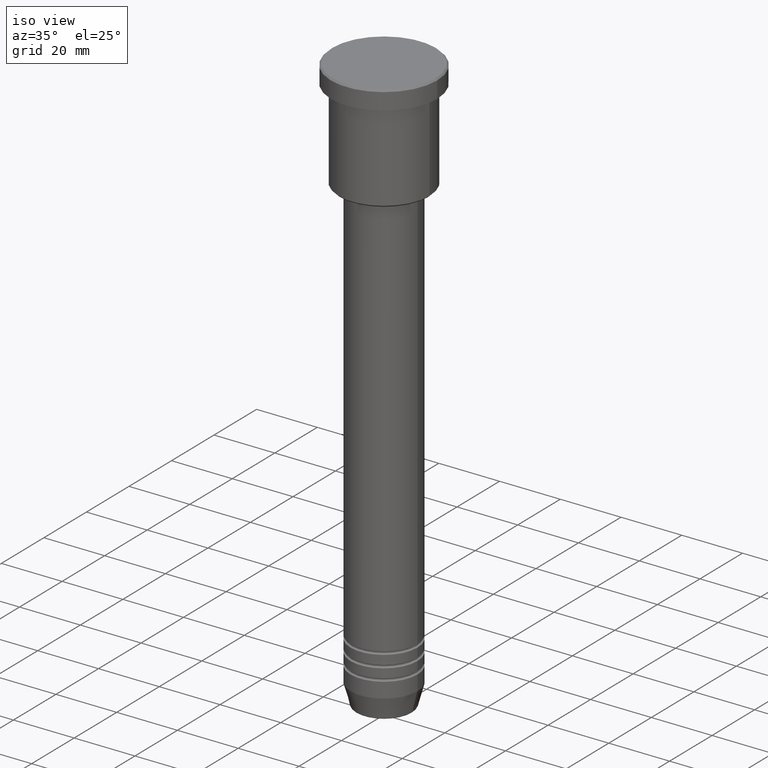
[diagram: clean part render]
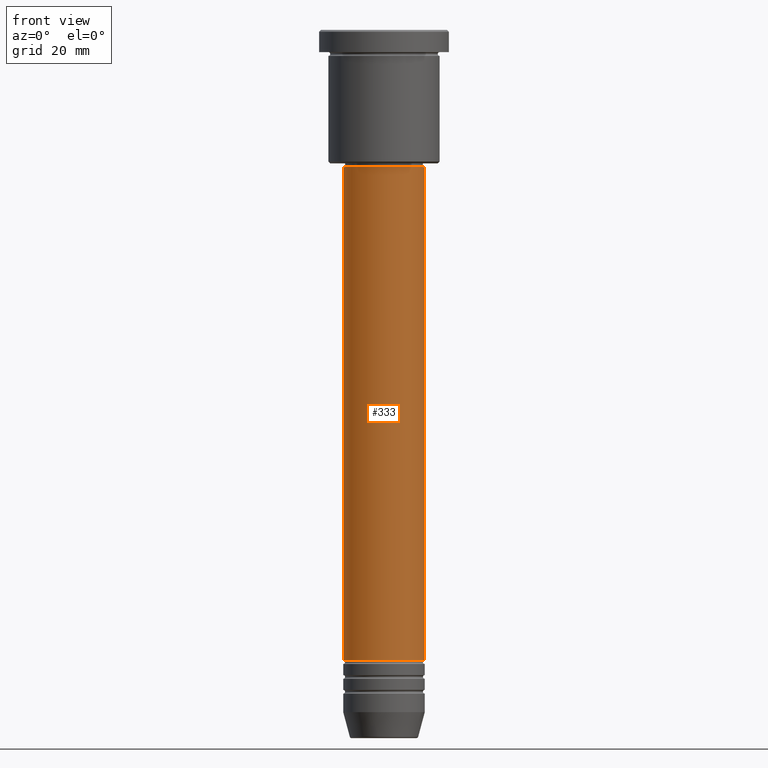
[diagram: tour spotlight — one face highlighted and labeled with its STEP entity id]
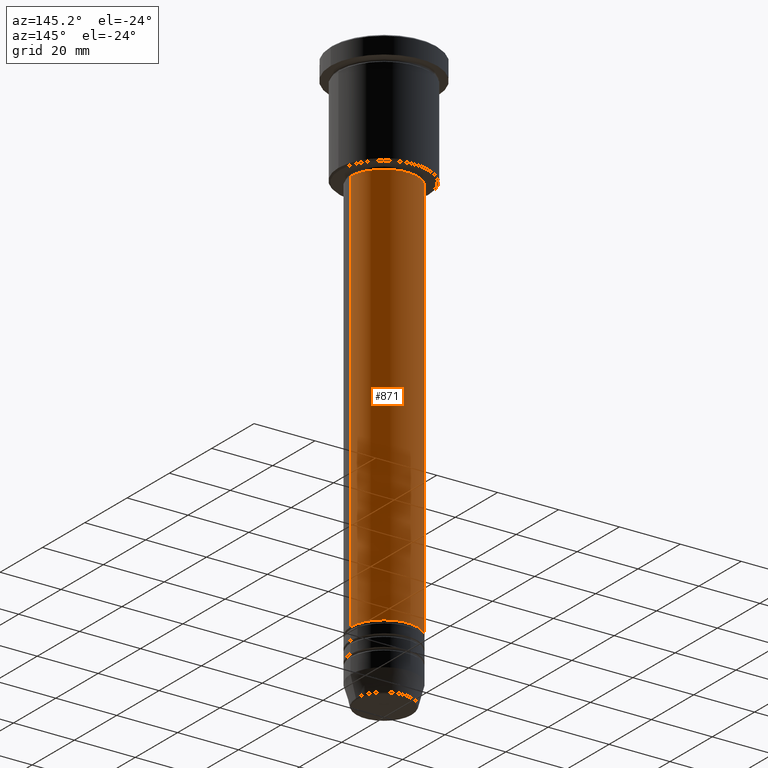
[diagram: tour spotlight — one face highlighted and labeled with its STEP entity id]
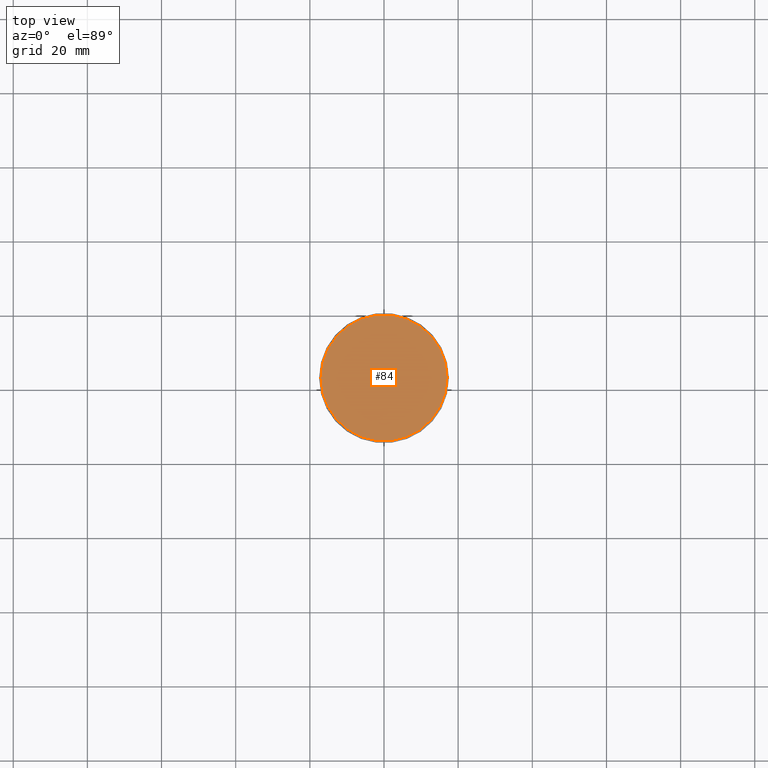
[diagram: tour spotlight — one face highlighted and labeled with its STEP entity id]
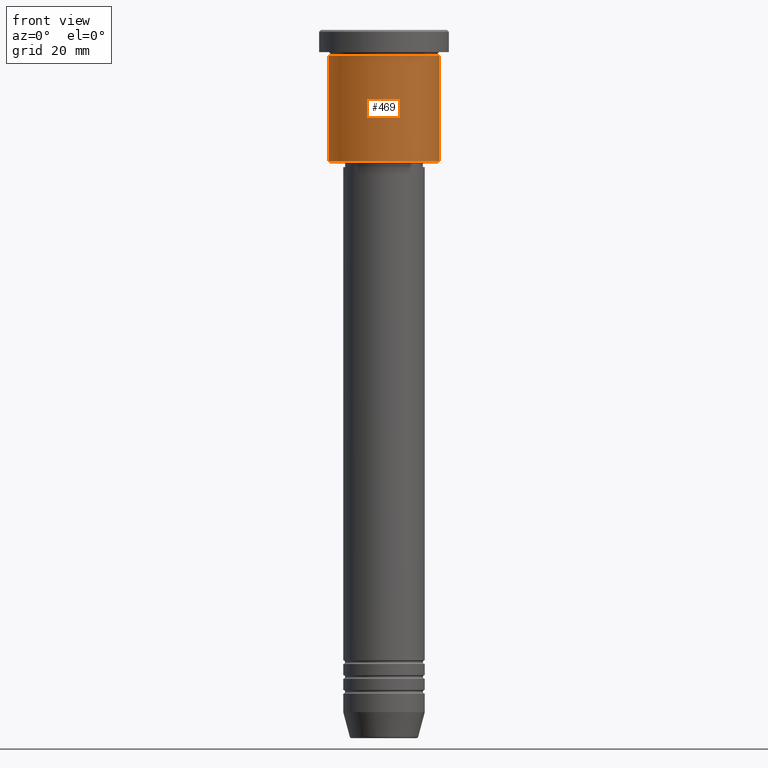
[diagram: tour spotlight — one face highlighted and labeled with its STEP entity id]
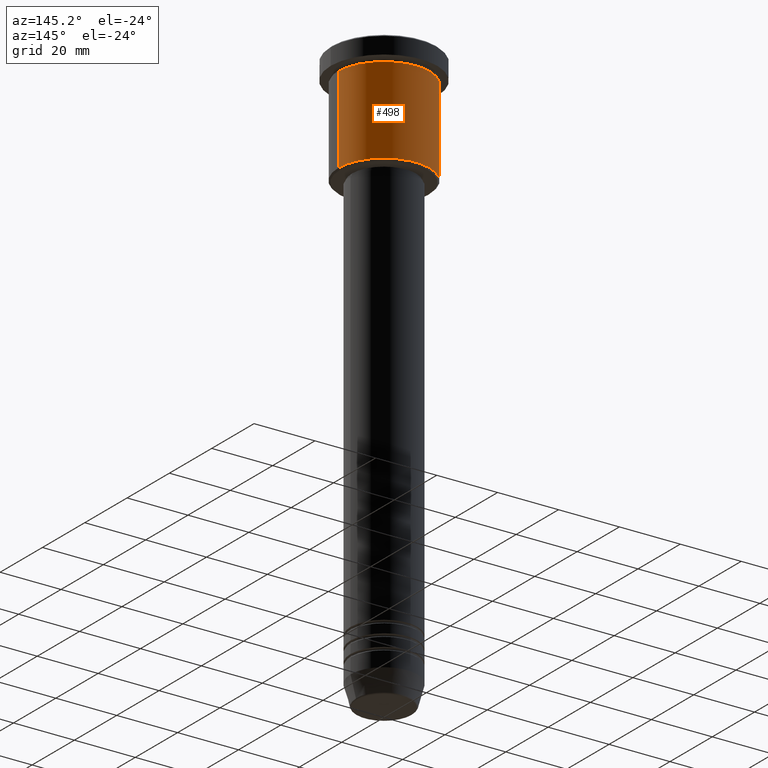
[diagram: tour spotlight — one face highlighted and labeled with its STEP entity id]
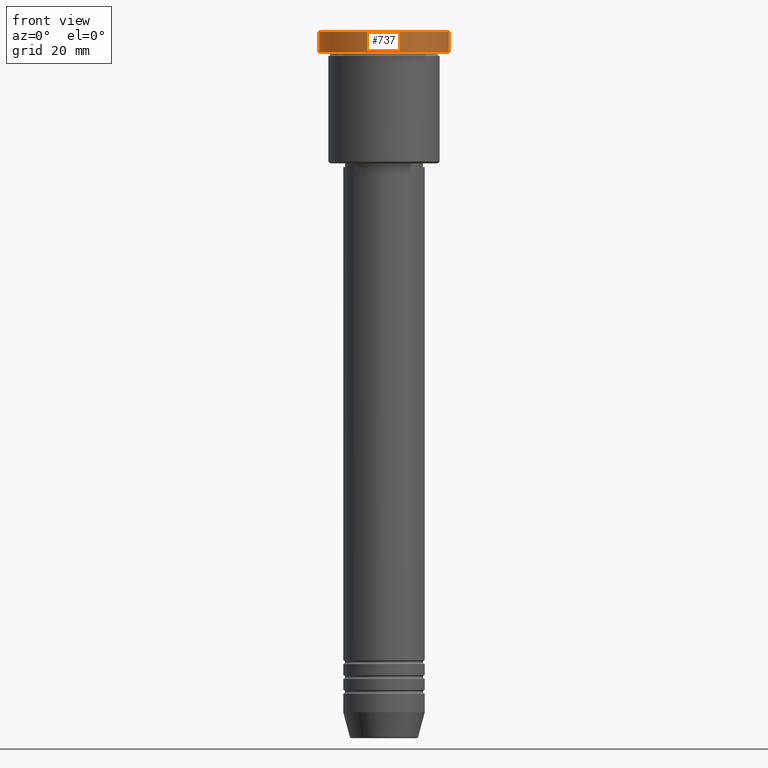
[diagram: tour spotlight — one face highlighted and labeled with its STEP entity id]
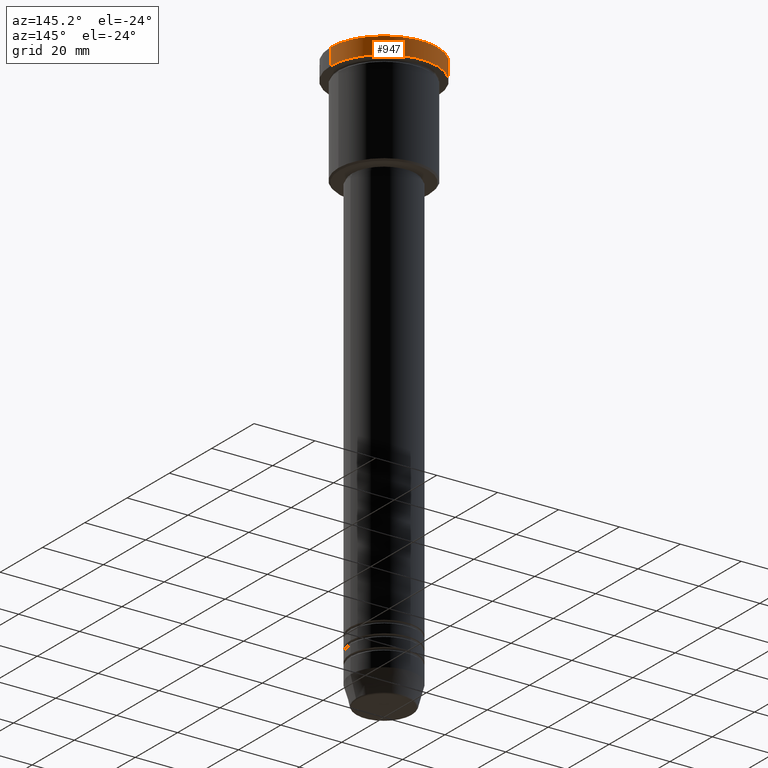
[diagram: tour spotlight — one face highlighted and labeled with its STEP entity id]
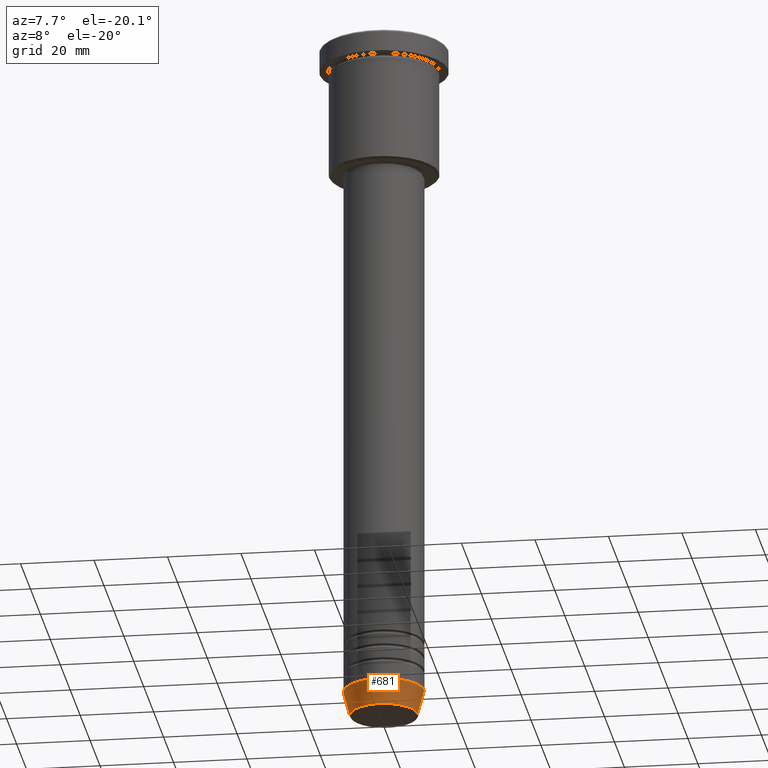
[diagram: tour spotlight — one face highlighted and labeled with its STEP entity id]
A machine part: a face-by-face anatomy tour. The part has 43 B-rep faces; the first image is the clean iso view, then the 8 largest visible faces are spotlighted one at a time (largest first), each with its STEP entity span.

Face 1 — front view, entity #333. In plain terms, the highlighted cylindrical surface (partial cylindrical patch) has radius 11 mm, axis along (-0, -0, 1).
Definition (entity closure, byte-faithful):
#41 = AXIS2_PLACEMENT_3D ( 'NONE', #484, #1128, #1027 ) ;
#92 = EDGE_CURVE ( 'NONE', #787, #120, #477, .T. ) ;
#102 = CARTESIAN_POINT ( 'NONE',  ( 11.00000000000000000, 0.000000000000000000, 0.000000000000000000 ) ) ;
#115 = VECTOR ( 'NONE', #647, 1000.000000000000000 ) ;
#120 = VERTEX_POINT ( 'NONE', #536 ) ;
#192 = LINE ( 'NONE', #360, #115 ) ;
#220 = DIRECTION ( 'NONE',  ( 1.000000000000000000, 0.000000000000000000, 0.000000000000000000 ) ) ;
#225 = FACE_OUTER_BOUND ( 'NONE', #940, .T. ) ;
#303 = AXIS2_PLACEMENT_3D ( 'NONE', #784, #720, #744 ) ;
#333 = ADVANCED_FACE ( 'NONE', ( #225 ), #1129, .T. ) ;
#339 = ORIENTED_EDGE ( 'NONE', *, *, #548, .F. ) ;
#344 = VERTEX_POINT ( 'NONE', #778 ) ;
#360 = CARTESIAN_POINT ( 'NONE',  ( -11.00000000000000000, 1.347111479062088405E-15, 0.000000000000000000 ) ) ;
#377 = ORIENTED_EDGE ( 'NONE', *, *, #1089, .T. ) ;
#411 = VECTOR ( 'NONE', #811, 1000.000000000000000 ) ;
#414 = CARTESIAN_POINT ( 'NONE',  ( 11.00000000000000000, 0.000000000000000000, -169.9999999999999147 ) ) ;
#477 = CIRCLE ( 'NONE', #303, 11.00000000000000000 ) ;
#482 = ORIENTED_EDGE ( 'NONE', *, *, #813, .T. ) ;
#484 = CARTESIAN_POINT ( 'NONE',  ( 0.000000000000000000, 0.000000000000000000, -169.9999999999999147 ) ) ;
#527 = ORIENTED_EDGE ( 'NONE', *, *, #92, .F. ) ;
#536 = CARTESIAN_POINT ( 'NONE',  ( 11.00000000000000000, 0.000000000000000000, -37.00000000000002842 ) ) ;
#548 = EDGE_CURVE ( 'NONE', #344, #787, #192, .T. ) ;
#554 = LINE ( 'NONE', #102, #411 ) ;
#647 = DIRECTION ( 'NONE',  ( -0.000000000000000000, -0.000000000000000000, 1.000000000000000000 ) ) ;
#708 = VERTEX_POINT ( 'NONE', #414 ) ;
#720 = DIRECTION ( 'NONE',  ( -0.000000000000000000, -0.000000000000000000, 1.000000000000000000 ) ) ;
#744 = DIRECTION ( 'NONE',  ( 1.000000000000000000, 0.000000000000000000, 0.000000000000000000 ) ) ;
#759 = CARTESIAN_POINT ( 'NONE',  ( 0.000000000000000000, 0.000000000000000000, 0.000000000000000000 ) ) ;
#778 = CARTESIAN_POINT ( 'NONE',  ( -11.00000000000000000, 1.347111479062088405E-15, -169.9999999999999147 ) ) ;
#784 = CARTESIAN_POINT ( 'NONE',  ( 0.000000000000000000, 0.000000000000000000, -37.00000000000002842 ) ) ;
#787 = VERTEX_POINT ( 'NONE', #837 ) ;
#805 = AXIS2_PLACEMENT_3D ( 'NONE', #759, #1123, #220 ) ;
#811 = DIRECTION ( 'NONE',  ( -0.000000000000000000, -0.000000000000000000, 1.000000000000000000 ) ) ;
#813 = EDGE_CURVE ( 'NONE', #344, #708, #1075, .T. ) ;
#837 = CARTESIAN_POINT ( 'NONE',  ( -11.00000000000000000, 1.347111479062088405E-15, -37.00000000000002842 ) ) ;
#940 = EDGE_LOOP ( 'NONE', ( #339, #482, #377, #527 ) ) ;
#1027 = DIRECTION ( 'NONE',  ( 1.000000000000000000, 0.000000000000000000, 0.000000000000000000 ) ) ;
#1075 = CIRCLE ( 'NONE', #41, 11.00000000000000000 ) ;
#1089 = EDGE_CURVE ( 'NONE', #708, #120, #554, .T. ) ;
#1123 = DIRECTION ( 'NONE',  ( -0.000000000000000000, -0.000000000000000000, 1.000000000000000000 ) ) ;
#1128 = DIRECTION ( 'NONE',  ( -0.000000000000000000, -0.000000000000000000, 1.000000000000000000 ) ) ;
#1129 = CYLINDRICAL_SURFACE ( 'NONE', #805, 11.00000000000000000 ) ;

Face 2 — auxiliary view, entity #871. In plain terms, the highlighted cylindrical surface (partial cylindrical patch) has radius 11 mm, axis along (-0, -0, 1).
Definition (entity closure, byte-faithful):
#67 = ORIENTED_EDGE ( 'NONE', *, *, #687, .T. ) ;
#102 = CARTESIAN_POINT ( 'NONE',  ( 11.00000000000000000, 0.000000000000000000, 0.000000000000000000 ) ) ;
#115 = VECTOR ( 'NONE', #647, 1000.000000000000000 ) ;
#117 = AXIS2_PLACEMENT_3D ( 'NONE', #140, #621, #418 ) ;
#120 = VERTEX_POINT ( 'NONE', #536 ) ;
#140 = CARTESIAN_POINT ( 'NONE',  ( 0.000000000000000000, 0.000000000000000000, 0.000000000000000000 ) ) ;
#177 = DIRECTION ( 'NONE',  ( -0.000000000000000000, -0.000000000000000000, 1.000000000000000000 ) ) ;
#192 = LINE ( 'NONE', #360, #115 ) ;
#209 = ORIENTED_EDGE ( 'NONE', *, *, #1089, .F. ) ;
#249 = FACE_OUTER_BOUND ( 'NONE', #1016, .T. ) ;
#265 = CARTESIAN_POINT ( 'NONE',  ( 0.000000000000000000, 0.000000000000000000, -37.00000000000002842 ) ) ;
#344 = VERTEX_POINT ( 'NONE', #778 ) ;
#360 = CARTESIAN_POINT ( 'NONE',  ( -11.00000000000000000, 1.347111479062088405E-15, 0.000000000000000000 ) ) ;
#411 = VECTOR ( 'NONE', #811, 1000.000000000000000 ) ;
#414 = CARTESIAN_POINT ( 'NONE',  ( 11.00000000000000000, 0.000000000000000000, -169.9999999999999147 ) ) ;
#418 = DIRECTION ( 'NONE',  ( 1.000000000000000000, 0.000000000000000000, 0.000000000000000000 ) ) ;
#483 = CIRCLE ( 'NONE', #883, 11.00000000000000000 ) ;
#536 = CARTESIAN_POINT ( 'NONE',  ( 11.00000000000000000, 0.000000000000000000, -37.00000000000002842 ) ) ;
#548 = EDGE_CURVE ( 'NONE', #344, #787, #192, .T. ) ;
#554 = LINE ( 'NONE', #102, #411 ) ;
#557 = EDGE_CURVE ( 'NONE', #120, #787, #483, .T. ) ;
#621 = DIRECTION ( 'NONE',  ( -0.000000000000000000, -0.000000000000000000, 1.000000000000000000 ) ) ;
#633 = CIRCLE ( 'NONE', #936, 11.00000000000000000 ) ;
#639 = ORIENTED_EDGE ( 'NONE', *, *, #557, .F. ) ;
#647 = DIRECTION ( 'NONE',  ( -0.000000000000000000, -0.000000000000000000, 1.000000000000000000 ) ) ;
#687 = EDGE_CURVE ( 'NONE', #708, #344, #633, .T. ) ;
#708 = VERTEX_POINT ( 'NONE', #414 ) ;
#738 = DIRECTION ( 'NONE',  ( -0.000000000000000000, -0.000000000000000000, 1.000000000000000000 ) ) ;
#778 = CARTESIAN_POINT ( 'NONE',  ( -11.00000000000000000, 1.347111479062088405E-15, -169.9999999999999147 ) ) ;
#787 = VERTEX_POINT ( 'NONE', #837 ) ;
#802 = ORIENTED_EDGE ( 'NONE', *, *, #548, .T. ) ;
#811 = DIRECTION ( 'NONE',  ( -0.000000000000000000, -0.000000000000000000, 1.000000000000000000 ) ) ;
#828 = CARTESIAN_POINT ( 'NONE',  ( 0.000000000000000000, 0.000000000000000000, -169.9999999999999147 ) ) ;
#833 = DIRECTION ( 'NONE',  ( 1.000000000000000000, 0.000000000000000000, 0.000000000000000000 ) ) ;
#837 = CARTESIAN_POINT ( 'NONE',  ( -11.00000000000000000, 1.347111479062088405E-15, -37.00000000000002842 ) ) ;
#870 = CYLINDRICAL_SURFACE ( 'NONE', #117, 11.00000000000000000 ) ;
#871 = ADVANCED_FACE ( 'NONE', ( #249 ), #870, .T. ) ;
#883 = AXIS2_PLACEMENT_3D ( 'NONE', #265, #177, #833 ) ;
#936 = AXIS2_PLACEMENT_3D ( 'NONE', #828, #738, #1103 ) ;
#1016 = EDGE_LOOP ( 'NONE', ( #67, #802, #639, #209 ) ) ;
#1089 = EDGE_CURVE ( 'NONE', #708, #120, #554, .T. ) ;
#1103 = DIRECTION ( 'NONE',  ( 1.000000000000000000, 0.000000000000000000, 0.000000000000000000 ) ) ;

Face 3 — top view, entity #84. In plain terms, the highlighted planar face has unit normal (0, -0, 1).
Definition (entity closure, byte-faithful):
#54 = DIRECTION ( 'NONE',  ( 1.000000000000000000, 0.000000000000000000, 0.000000000000000000 ) ) ;
#84 = ADVANCED_FACE ( 'NONE', ( #236 ), #878, .T. ) ;
#98 = AXIS2_PLACEMENT_3D ( 'NONE', #1170, #691, #603 ) ;
#110 = EDGE_LOOP ( 'NONE', ( #835, #836 ) ) ;
#126 = DIRECTION ( 'NONE',  ( 1.000000000000000000, 0.000000000000000000, 0.000000000000000000 ) ) ;
#157 = CIRCLE ( 'NONE', #98, 17.00000000000001421 ) ;
#236 = FACE_OUTER_BOUND ( 'NONE', #110, .T. ) ;
#275 = VERTEX_POINT ( 'NONE', #675 ) ;
#354 = CARTESIAN_POINT ( 'NONE',  ( 17.00000000000001421, 2.112515728529185250E-15, 0.000000000000000000 ) ) ;
#398 = VERTEX_POINT ( 'NONE', #354 ) ;
#420 = DIRECTION ( 'NONE',  ( 0.000000000000000000, -0.000000000000000000, 1.000000000000000000 ) ) ;
#574 = DIRECTION ( 'NONE',  ( -0.000000000000000000, -0.000000000000000000, 1.000000000000000000 ) ) ;
#576 = AXIS2_PLACEMENT_3D ( 'NONE', #873, #420, #54 ) ;
#603 = DIRECTION ( 'NONE',  ( 1.000000000000000000, 0.000000000000000000, 0.000000000000000000 ) ) ;
#675 = CARTESIAN_POINT ( 'NONE',  ( -17.00000000000001421, 0.000000000000000000, 0.000000000000000000 ) ) ;
#691 = DIRECTION ( 'NONE',  ( -0.000000000000000000, -0.000000000000000000, 1.000000000000000000 ) ) ;
#698 = EDGE_CURVE ( 'NONE', #275, #398, #976, .T. ) ;
#835 = ORIENTED_EDGE ( 'NONE', *, *, #698, .T. ) ;
#836 = ORIENTED_EDGE ( 'NONE', *, *, #963, .T. ) ;
#873 = CARTESIAN_POINT ( 'NONE',  ( 0.000000000000000000, 0.000000000000000000, 0.000000000000000000 ) ) ;
#878 = PLANE ( 'NONE',  #576 ) ;
#963 = EDGE_CURVE ( 'NONE', #398, #275, #157, .T. ) ;
#976 = CIRCLE ( 'NONE', #1031, 17.00000000000001421 ) ;
#1031 = AXIS2_PLACEMENT_3D ( 'NONE', #1117, #574, #126 ) ;
#1117 = CARTESIAN_POINT ( 'NONE',  ( 0.000000000000000000, 0.000000000000000000, 0.000000000000000000 ) ) ;
#1170 = CARTESIAN_POINT ( 'NONE',  ( 0.000000000000000000, 0.000000000000000000, 0.000000000000000000 ) ) ;

Face 4 — front view, entity #469. In plain terms, the highlighted cylindrical surface (partial cylindrical patch) has radius 15 mm, axis along (-0, -0, 1).
Definition (entity closure, byte-faithful):
#17 = DIRECTION ( 'NONE',  ( -0.000000000000000000, -0.000000000000000000, 1.000000000000000000 ) ) ;
#103 = DIRECTION ( 'NONE',  ( 1.000000000000000000, 0.000000000000000000, 0.000000000000000000 ) ) ;
#127 = DIRECTION ( 'NONE',  ( -1.000000000000000000, 0.000000000000000000, 0.000000000000000000 ) ) ;
#155 = EDGE_LOOP ( 'NONE', ( #188, #703, #594, #432 ) ) ;
#171 = FACE_OUTER_BOUND ( 'NONE', #155, .T. ) ;
#188 = ORIENTED_EDGE ( 'NONE', *, *, #1026, .F. ) ;
#189 = CARTESIAN_POINT ( 'NONE',  ( -15.00000000000000000, 1.836970198721029589E-15, 0.000000000000000000 ) ) ;
#206 = DIRECTION ( 'NONE',  ( -0.000000000000000000, -0.000000000000000000, 1.000000000000000000 ) ) ;
#261 = CARTESIAN_POINT ( 'NONE',  ( 0.000000000000000000, 0.000000000000000000, 0.000000000000000000 ) ) ;
#272 = EDGE_CURVE ( 'NONE', #818, #968, #651, .T. ) ;
#347 = DIRECTION ( 'NONE',  ( -0.000000000000000000, -0.000000000000000000, 1.000000000000000000 ) ) ;
#357 = VERTEX_POINT ( 'NONE', #590 ) ;
#367 = AXIS2_PLACEMENT_3D ( 'NONE', #723, #17, #103 ) ;
#400 = VERTEX_POINT ( 'NONE', #1068 ) ;
#432 = ORIENTED_EDGE ( 'NONE', *, *, #628, .F. ) ;
#460 = VECTOR ( 'NONE', #1007, 1000.000000000000000 ) ;
#469 = ADVANCED_FACE ( 'NONE', ( #171 ), #1061, .T. ) ;
#489 = CARTESIAN_POINT ( 'NONE',  ( -15.00000000000000000, 1.836970198721029589E-15, -35.50000000000002132 ) ) ;
#510 = CARTESIAN_POINT ( 'NONE',  ( 0.000000000000000000, 0.000000000000000000, -35.50000000000002132 ) ) ;
#523 = VECTOR ( 'NONE', #722, 1000.000000000000000 ) ;
#524 = EDGE_CURVE ( 'NONE', #968, #400, #915, .T. ) ;
#579 = CIRCLE ( 'NONE', #367, 15.00000000000000000 ) ;
#590 = CARTESIAN_POINT ( 'NONE',  ( -15.00000000000000000, 1.836970198721029589E-15, -6.999999999999995559 ) ) ;
#594 = ORIENTED_EDGE ( 'NONE', *, *, #524, .T. ) ;
#604 = DIRECTION ( 'NONE',  ( 1.000000000000000000, 0.000000000000000000, 0.000000000000000000 ) ) ;
#628 = EDGE_CURVE ( 'NONE', #357, #400, #579, .T. ) ;
#651 = CIRCLE ( 'NONE', #935, 15.00000000000000000 ) ;
#703 = ORIENTED_EDGE ( 'NONE', *, *, #272, .T. ) ;
#722 = DIRECTION ( 'NONE',  ( -0.000000000000000000, -0.000000000000000000, 1.000000000000000000 ) ) ;
#723 = CARTESIAN_POINT ( 'NONE',  ( 0.000000000000000000, 0.000000000000000000, -6.999999999999995559 ) ) ;
#747 = AXIS2_PLACEMENT_3D ( 'NONE', #261, #347, #604 ) ;
#818 = VERTEX_POINT ( 'NONE', #489 ) ;
#901 = LINE ( 'NONE', #189, #523 ) ;
#915 = LINE ( 'NONE', #922, #460 ) ;
#922 = CARTESIAN_POINT ( 'NONE',  ( 15.00000000000000000, 0.000000000000000000, 0.000000000000000000 ) ) ;
#935 = AXIS2_PLACEMENT_3D ( 'NONE', #510, #206, #127 ) ;
#964 = CARTESIAN_POINT ( 'NONE',  ( 15.00000000000000000, 0.000000000000000000, -35.50000000000002132 ) ) ;
#968 = VERTEX_POINT ( 'NONE', #964 ) ;
#1007 = DIRECTION ( 'NONE',  ( -0.000000000000000000, -0.000000000000000000, 1.000000000000000000 ) ) ;
#1026 = EDGE_CURVE ( 'NONE', #818, #357, #901, .T. ) ;
#1061 = CYLINDRICAL_SURFACE ( 'NONE', #747, 15.00000000000000000 ) ;
#1068 = CARTESIAN_POINT ( 'NONE',  ( 15.00000000000000000, 0.000000000000000000, -6.999999999999995559 ) ) ;

Face 5 — auxiliary view, entity #498. In plain terms, the highlighted cylindrical surface (partial cylindrical patch) has radius 15 mm, axis along (-0, -0, 1).
Definition (entity closure, byte-faithful):
#1 = AXIS2_PLACEMENT_3D ( 'NONE', #162, #356, #1079 ) ;
#57 = CYLINDRICAL_SURFACE ( 'NONE', #329, 15.00000000000000000 ) ;
#138 = EDGE_CURVE ( 'NONE', #400, #357, #857, .T. ) ;
#162 = CARTESIAN_POINT ( 'NONE',  ( 0.000000000000000000, 0.000000000000000000, -6.999999999999995559 ) ) ;
#169 = ORIENTED_EDGE ( 'NONE', *, *, #524, .F. ) ;
#175 = CIRCLE ( 'NONE', #308, 15.00000000000000000 ) ;
#189 = CARTESIAN_POINT ( 'NONE',  ( -15.00000000000000000, 1.836970198721029589E-15, 0.000000000000000000 ) ) ;
#282 = CARTESIAN_POINT ( 'NONE',  ( 0.000000000000000000, 0.000000000000000000, -35.50000000000002132 ) ) ;
#308 = AXIS2_PLACEMENT_3D ( 'NONE', #282, #907, #812 ) ;
#329 = AXIS2_PLACEMENT_3D ( 'NONE', #425, #790, #1155 ) ;
#356 = DIRECTION ( 'NONE',  ( -0.000000000000000000, -0.000000000000000000, 1.000000000000000000 ) ) ;
#357 = VERTEX_POINT ( 'NONE', #590 ) ;
#400 = VERTEX_POINT ( 'NONE', #1068 ) ;
#425 = CARTESIAN_POINT ( 'NONE',  ( 0.000000000000000000, 0.000000000000000000, 0.000000000000000000 ) ) ;
#460 = VECTOR ( 'NONE', #1007, 1000.000000000000000 ) ;
#489 = CARTESIAN_POINT ( 'NONE',  ( -15.00000000000000000, 1.836970198721029589E-15, -35.50000000000002132 ) ) ;
#498 = ADVANCED_FACE ( 'NONE', ( #514 ), #57, .T. ) ;
#514 = FACE_OUTER_BOUND ( 'NONE', #1091, .T. ) ;
#523 = VECTOR ( 'NONE', #722, 1000.000000000000000 ) ;
#524 = EDGE_CURVE ( 'NONE', #968, #400, #915, .T. ) ;
#570 = ORIENTED_EDGE ( 'NONE', *, *, #1026, .T. ) ;
#590 = CARTESIAN_POINT ( 'NONE',  ( -15.00000000000000000, 1.836970198721029589E-15, -6.999999999999995559 ) ) ;
#623 = EDGE_CURVE ( 'NONE', #968, #818, #175, .T. ) ;
#722 = DIRECTION ( 'NONE',  ( -0.000000000000000000, -0.000000000000000000, 1.000000000000000000 ) ) ;
#780 = ORIENTED_EDGE ( 'NONE', *, *, #623, .T. ) ;
#790 = DIRECTION ( 'NONE',  ( -0.000000000000000000, -0.000000000000000000, 1.000000000000000000 ) ) ;
#812 = DIRECTION ( 'NONE',  ( -1.000000000000000000, 0.000000000000000000, 0.000000000000000000 ) ) ;
#818 = VERTEX_POINT ( 'NONE', #489 ) ;
#857 = CIRCLE ( 'NONE', #1, 15.00000000000000000 ) ;
#901 = LINE ( 'NONE', #189, #523 ) ;
#907 = DIRECTION ( 'NONE',  ( -0.000000000000000000, -0.000000000000000000, 1.000000000000000000 ) ) ;
#915 = LINE ( 'NONE', #922, #460 ) ;
#922 = CARTESIAN_POINT ( 'NONE',  ( 15.00000000000000000, 0.000000000000000000, 0.000000000000000000 ) ) ;
#964 = CARTESIAN_POINT ( 'NONE',  ( 15.00000000000000000, 0.000000000000000000, -35.50000000000002132 ) ) ;
#968 = VERTEX_POINT ( 'NONE', #964 ) ;
#997 = ORIENTED_EDGE ( 'NONE', *, *, #138, .F. ) ;
#1007 = DIRECTION ( 'NONE',  ( -0.000000000000000000, -0.000000000000000000, 1.000000000000000000 ) ) ;
#1026 = EDGE_CURVE ( 'NONE', #818, #357, #901, .T. ) ;
#1068 = CARTESIAN_POINT ( 'NONE',  ( 15.00000000000000000, 0.000000000000000000, -6.999999999999995559 ) ) ;
#1079 = DIRECTION ( 'NONE',  ( 1.000000000000000000, 0.000000000000000000, 0.000000000000000000 ) ) ;
#1091 = EDGE_LOOP ( 'NONE', ( #780, #570, #997, #169 ) ) ;
#1155 = DIRECTION ( 'NONE',  ( 1.000000000000000000, 0.000000000000000000, 0.000000000000000000 ) ) ;

Face 6 — front view, entity #737. In plain terms, the highlighted cylindrical surface (partial cylindrical patch) has radius 17.5 mm, axis along (-0, -0, 1).
Definition (entity closure, byte-faithful):
#33 = CYLINDRICAL_SURFACE ( 'NONE', #191, 17.50000000000000000 ) ;
#42 = CIRCLE ( 'NONE', #937, 17.50000000000000000 ) ;
#83 = CIRCLE ( 'NONE', #1076, 17.50000000000000000 ) ;
#95 = CARTESIAN_POINT ( 'NONE',  ( -17.50000000000000000, 2.143131898507868248E-15, -5.999999999999995559 ) ) ;
#109 = DIRECTION ( 'NONE',  ( 1.000000000000000000, 0.000000000000000000, 0.000000000000000000 ) ) ;
#142 = EDGE_LOOP ( 'NONE', ( #533, #1021, #852, #550 ) ) ;
#174 = CARTESIAN_POINT ( 'NONE',  ( 0.000000000000000000, 0.000000000000000000, -0.5000000000000003331 ) ) ;
#191 = AXIS2_PLACEMENT_3D ( 'NONE', #320, #1140, #109 ) ;
#204 = VERTEX_POINT ( 'NONE', #376 ) ;
#295 = VERTEX_POINT ( 'NONE', #390 ) ;
#314 = CARTESIAN_POINT ( 'NONE',  ( -17.50000000000000000, 2.143131898507868248E-15, 0.000000000000000000 ) ) ;
#320 = CARTESIAN_POINT ( 'NONE',  ( 0.000000000000000000, 0.000000000000000000, 0.000000000000000000 ) ) ;
#376 = CARTESIAN_POINT ( 'NONE',  ( 17.50000000000000000, 0.000000000000000000, -0.5000000000000003331 ) ) ;
#390 = CARTESIAN_POINT ( 'NONE',  ( 17.50000000000000000, 0.000000000000000000, -5.999999999999995559 ) ) ;
#461 = VECTOR ( 'NONE', #753, 1000.000000000000000 ) ;
#475 = CARTESIAN_POINT ( 'NONE',  ( 17.50000000000000000, 0.000000000000000000, 0.000000000000000000 ) ) ;
#501 = FACE_OUTER_BOUND ( 'NONE', #142, .T. ) ;
#528 = DIRECTION ( 'NONE',  ( -0.000000000000000000, -0.000000000000000000, 1.000000000000000000 ) ) ;
#533 = ORIENTED_EDGE ( 'NONE', *, *, #745, .F. ) ;
#550 = ORIENTED_EDGE ( 'NONE', *, *, #1112, .T. ) ;
#658 = VERTEX_POINT ( 'NONE', #734 ) ;
#685 = LINE ( 'NONE', #314, #842 ) ;
#709 = CARTESIAN_POINT ( 'NONE',  ( 0.000000000000000000, 0.000000000000000000, -5.999999999999995559 ) ) ;
#717 = DIRECTION ( 'NONE',  ( 1.000000000000000000, 0.000000000000000000, 0.000000000000000000 ) ) ;
#734 = CARTESIAN_POINT ( 'NONE',  ( -17.50000000000000000, 2.143131898507868248E-15, -0.5000000000000003331 ) ) ;
#737 = ADVANCED_FACE ( 'NONE', ( #501 ), #33, .T. ) ;
#745 = EDGE_CURVE ( 'NONE', #1035, #658, #685, .T. ) ;
#753 = DIRECTION ( 'NONE',  ( -0.000000000000000000, -0.000000000000000000, 1.000000000000000000 ) ) ;
#783 = EDGE_CURVE ( 'NONE', #295, #204, #865, .T. ) ;
#842 = VECTOR ( 'NONE', #1122, 1000.000000000000000 ) ;
#852 = ORIENTED_EDGE ( 'NONE', *, *, #783, .T. ) ;
#865 = LINE ( 'NONE', #475, #461 ) ;
#877 = EDGE_CURVE ( 'NONE', #1035, #295, #42, .T. ) ;
#937 = AXIS2_PLACEMENT_3D ( 'NONE', #709, #528, #717 ) ;
#1021 = ORIENTED_EDGE ( 'NONE', *, *, #877, .T. ) ;
#1035 = VERTEX_POINT ( 'NONE', #95 ) ;
#1076 = AXIS2_PLACEMENT_3D ( 'NONE', #174, #1102, #1099 ) ;
#1099 = DIRECTION ( 'NONE',  ( 1.000000000000000000, 0.000000000000000000, 0.000000000000000000 ) ) ;
#1102 = DIRECTION ( 'NONE',  ( 0.000000000000000000, 0.000000000000000000, -1.000000000000000000 ) ) ;
#1112 = EDGE_CURVE ( 'NONE', #204, #658, #83, .T. ) ;
#1122 = DIRECTION ( 'NONE',  ( -0.000000000000000000, -0.000000000000000000, 1.000000000000000000 ) ) ;
#1140 = DIRECTION ( 'NONE',  ( -0.000000000000000000, -0.000000000000000000, 1.000000000000000000 ) ) ;

Face 7 — auxiliary view, entity #947. In plain terms, the highlighted cylindrical surface (partial cylindrical patch) has radius 17.5 mm, axis along (-0, -0, 1).
Definition (entity closure, byte-faithful):
#74 = CARTESIAN_POINT ( 'NONE',  ( 0.000000000000000000, 0.000000000000000000, 0.000000000000000000 ) ) ;
#90 = DIRECTION ( 'NONE',  ( 1.000000000000000000, 0.000000000000000000, 0.000000000000000000 ) ) ;
#95 = CARTESIAN_POINT ( 'NONE',  ( -17.50000000000000000, 2.143131898507868248E-15, -5.999999999999995559 ) ) ;
#204 = VERTEX_POINT ( 'NONE', #376 ) ;
#288 = AXIS2_PLACEMENT_3D ( 'NONE', #402, #686, #1029 ) ;
#295 = VERTEX_POINT ( 'NONE', #390 ) ;
#304 = ORIENTED_EDGE ( 'NONE', *, *, #745, .T. ) ;
#314 = CARTESIAN_POINT ( 'NONE',  ( -17.50000000000000000, 2.143131898507868248E-15, 0.000000000000000000 ) ) ;
#327 = CYLINDRICAL_SURFACE ( 'NONE', #332, 17.50000000000000000 ) ;
#332 = AXIS2_PLACEMENT_3D ( 'NONE', #74, #1154, #440 ) ;
#338 = ORIENTED_EDGE ( 'NONE', *, *, #1050, .T. ) ;
#353 = FACE_OUTER_BOUND ( 'NONE', #731, .T. ) ;
#355 = EDGE_CURVE ( 'NONE', #658, #204, #1110, .T. ) ;
#376 = CARTESIAN_POINT ( 'NONE',  ( 17.50000000000000000, 0.000000000000000000, -0.5000000000000003331 ) ) ;
#390 = CARTESIAN_POINT ( 'NONE',  ( 17.50000000000000000, 0.000000000000000000, -5.999999999999995559 ) ) ;
#402 = CARTESIAN_POINT ( 'NONE',  ( 0.000000000000000000, 0.000000000000000000, -0.5000000000000003331 ) ) ;
#440 = DIRECTION ( 'NONE',  ( 1.000000000000000000, 0.000000000000000000, 0.000000000000000000 ) ) ;
#461 = VECTOR ( 'NONE', #753, 1000.000000000000000 ) ;
#464 = CIRCLE ( 'NONE', #1132, 17.50000000000000000 ) ;
#475 = CARTESIAN_POINT ( 'NONE',  ( 17.50000000000000000, 0.000000000000000000, 0.000000000000000000 ) ) ;
#487 = ORIENTED_EDGE ( 'NONE', *, *, #783, .F. ) ;
#658 = VERTEX_POINT ( 'NONE', #734 ) ;
#685 = LINE ( 'NONE', #314, #842 ) ;
#686 = DIRECTION ( 'NONE',  ( 0.000000000000000000, 0.000000000000000000, -1.000000000000000000 ) ) ;
#725 = DIRECTION ( 'NONE',  ( -0.000000000000000000, -0.000000000000000000, 1.000000000000000000 ) ) ;
#731 = EDGE_LOOP ( 'NONE', ( #338, #304, #1115, #487 ) ) ;
#734 = CARTESIAN_POINT ( 'NONE',  ( -17.50000000000000000, 2.143131898507868248E-15, -0.5000000000000003331 ) ) ;
#736 = CARTESIAN_POINT ( 'NONE',  ( 0.000000000000000000, 0.000000000000000000, -5.999999999999995559 ) ) ;
#745 = EDGE_CURVE ( 'NONE', #1035, #658, #685, .T. ) ;
#753 = DIRECTION ( 'NONE',  ( -0.000000000000000000, -0.000000000000000000, 1.000000000000000000 ) ) ;
#783 = EDGE_CURVE ( 'NONE', #295, #204, #865, .T. ) ;
#842 = VECTOR ( 'NONE', #1122, 1000.000000000000000 ) ;
#865 = LINE ( 'NONE', #475, #461 ) ;
#947 = ADVANCED_FACE ( 'NONE', ( #353 ), #327, .T. ) ;
#1029 = DIRECTION ( 'NONE',  ( 1.000000000000000000, 0.000000000000000000, 0.000000000000000000 ) ) ;
#1035 = VERTEX_POINT ( 'NONE', #95 ) ;
#1050 = EDGE_CURVE ( 'NONE', #295, #1035, #464, .T. ) ;
#1110 = CIRCLE ( 'NONE', #288, 17.50000000000000000 ) ;
#1115 = ORIENTED_EDGE ( 'NONE', *, *, #355, .T. ) ;
#1122 = DIRECTION ( 'NONE',  ( -0.000000000000000000, -0.000000000000000000, 1.000000000000000000 ) ) ;
#1132 = AXIS2_PLACEMENT_3D ( 'NONE', #736, #725, #90 ) ;
#1154 = DIRECTION ( 'NONE',  ( -0.000000000000000000, -0.000000000000000000, 1.000000000000000000 ) ) ;

Face 8 — auxiliary view, entity #681. In plain terms, the highlighted conical surface has half-angle 15 deg.
Definition (entity closure, byte-faithful):
#5 = VECTOR ( 'NONE', #296, 1000.000000000000000 ) ;
#6 = FACE_OUTER_BOUND ( 'NONE', #1124, .T. ) ;
#62 = CIRCLE ( 'NONE', #695, 9.223655072137189492 ) ;
#66 = EDGE_CURVE ( 'NONE', #1059, #1053, #710, .T. ) ;
#97 = CARTESIAN_POINT ( 'NONE',  ( 0.000000000000000000, 0.000000000000000000, -184.0000000000000000 ) ) ;
#141 = DIRECTION ( 'NONE',  ( -0.000000000000000000, -0.000000000000000000, 1.000000000000000000 ) ) ;
#149 = DIRECTION ( 'NONE',  ( -0.000000000000000000, -0.000000000000000000, 1.000000000000000000 ) ) ;
#158 = VERTEX_POINT ( 'NONE', #898 ) ;
#199 = DIRECTION ( 'NONE',  ( -0.2588190451025213501, 3.169619151431772337E-17, 0.9659258262890680902 ) ) ;
#210 = CARTESIAN_POINT ( 'NONE',  ( 9.223655072137189492, 0.000000000000000000, -190.6294095225512422 ) ) ;
#241 = DIRECTION ( 'NONE',  ( 1.000000000000000000, 0.000000000000000000, 0.000000000000000000 ) ) ;
#266 = AXIS2_PLACEMENT_3D ( 'NONE', #1144, #141, #241 ) ;
#268 = VECTOR ( 'NONE', #199, 1000.000000000000000 ) ;
#278 = DIRECTION ( 'NONE',  ( 1.000000000000000000, 0.000000000000000000, 0.000000000000000000 ) ) ;
#296 = DIRECTION ( 'NONE',  ( 0.2588190451025213501, 0.000000000000000000, 0.9659258262890680902 ) ) ;
#331 = CONICAL_SURFACE ( 'NONE', #1094, 11.00000000000000000, 0.2617993877991500740 ) ;
#340 = DIRECTION ( 'NONE',  ( 1.000000000000000000, 0.000000000000000000, 0.000000000000000000 ) ) ;
#555 = LINE ( 'NONE', #1017, #268 ) ;
#608 = EDGE_CURVE ( 'NONE', #158, #1059, #555, .T. ) ;
#625 = ORIENTED_EDGE ( 'NONE', *, *, #719, .T. ) ;
#629 = ORIENTED_EDGE ( 'NONE', *, *, #926, .T. ) ;
#681 = ADVANCED_FACE ( 'NONE', ( #6 ), #331, .T. ) ;
#684 = ORIENTED_EDGE ( 'NONE', *, *, #608, .F. ) ;
#695 = AXIS2_PLACEMENT_3D ( 'NONE', #960, #149, #340 ) ;
#710 = CIRCLE ( 'NONE', #266, 11.00000000000000000 ) ;
#719 = EDGE_CURVE ( 'NONE', #724, #1053, #849, .T. ) ;
#724 = VERTEX_POINT ( 'NONE', #210 ) ;
#732 = CARTESIAN_POINT ( 'NONE',  ( -11.00000000000000000, 1.347111479062088405E-15, -184.0000000000000000 ) ) ;
#758 = CARTESIAN_POINT ( 'NONE',  ( 11.00000000000000000, 0.000000000000000000, -184.0000000000000000 ) ) ;
#849 = LINE ( 'NONE', #758, #5 ) ;
#898 = CARTESIAN_POINT ( 'NONE',  ( -9.223655072137189492, 1.238341722557647202E-15, -190.6294095225512422 ) ) ;
#926 = EDGE_CURVE ( 'NONE', #158, #724, #62, .T. ) ;
#930 = ORIENTED_EDGE ( 'NONE', *, *, #66, .F. ) ;
#960 = CARTESIAN_POINT ( 'NONE',  ( 0.000000000000000000, 0.000000000000000000, -190.6294095225512422 ) ) ;
#1017 = CARTESIAN_POINT ( 'NONE',  ( -11.00000000000000000, 1.347111479062088405E-15, -184.0000000000000000 ) ) ;
#1053 = VERTEX_POINT ( 'NONE', #1081 ) ;
#1059 = VERTEX_POINT ( 'NONE', #732 ) ;
#1081 = CARTESIAN_POINT ( 'NONE',  ( 11.00000000000000000, 0.000000000000000000, -184.0000000000000000 ) ) ;
#1094 = AXIS2_PLACEMENT_3D ( 'NONE', #97, #1100, #278 ) ;
#1100 = DIRECTION ( 'NONE',  ( -0.000000000000000000, -0.000000000000000000, 1.000000000000000000 ) ) ;
#1124 = EDGE_LOOP ( 'NONE', ( #684, #629, #625, #930 ) ) ;
#1144 = CARTESIAN_POINT ( 'NONE',  ( 0.000000000000000000, 0.000000000000000000, -184.0000000000000000 ) ) ;